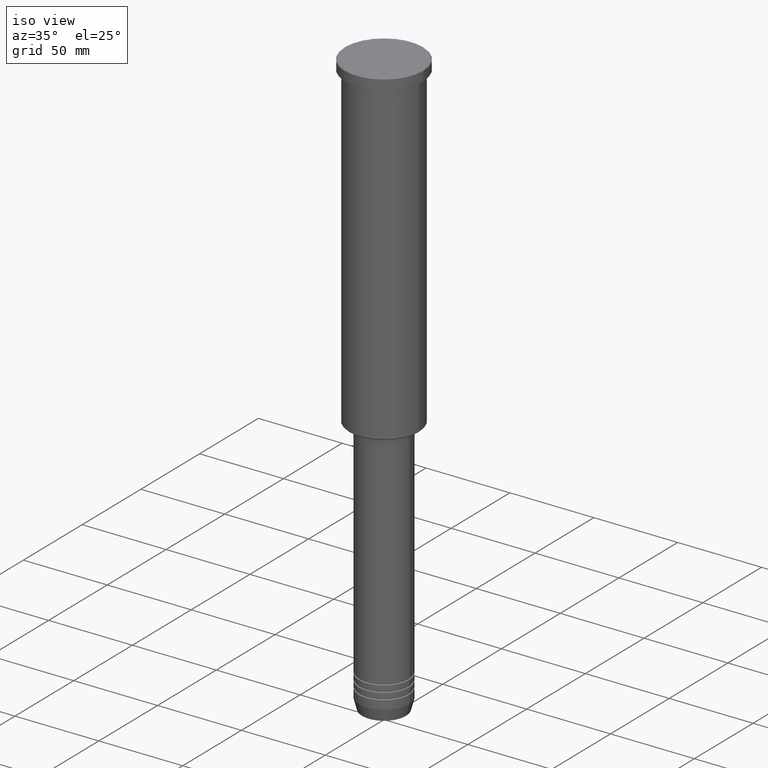
[diagram: clean part render]
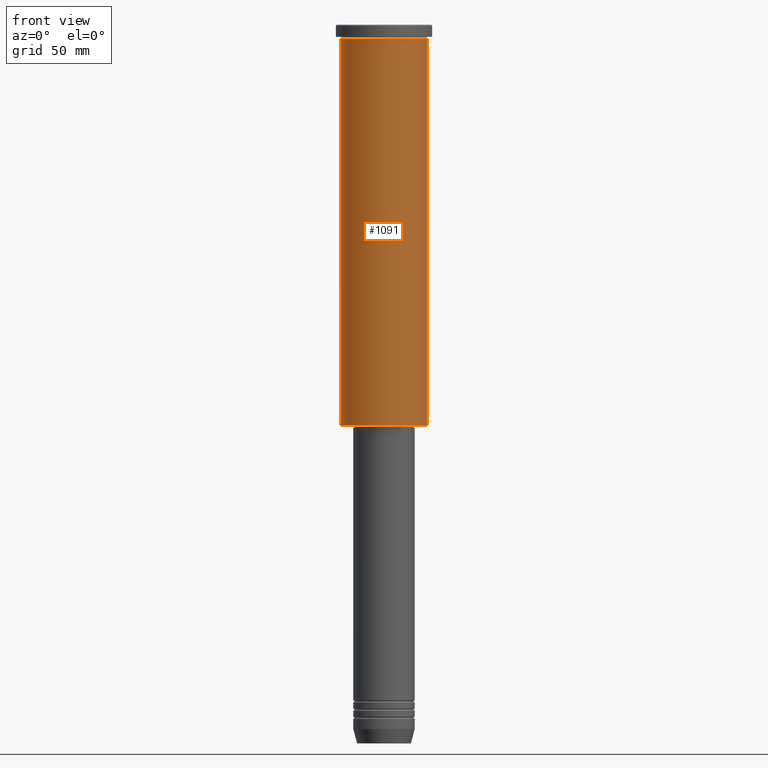
[diagram: tour spotlight — one face highlighted and labeled with its STEP entity id]
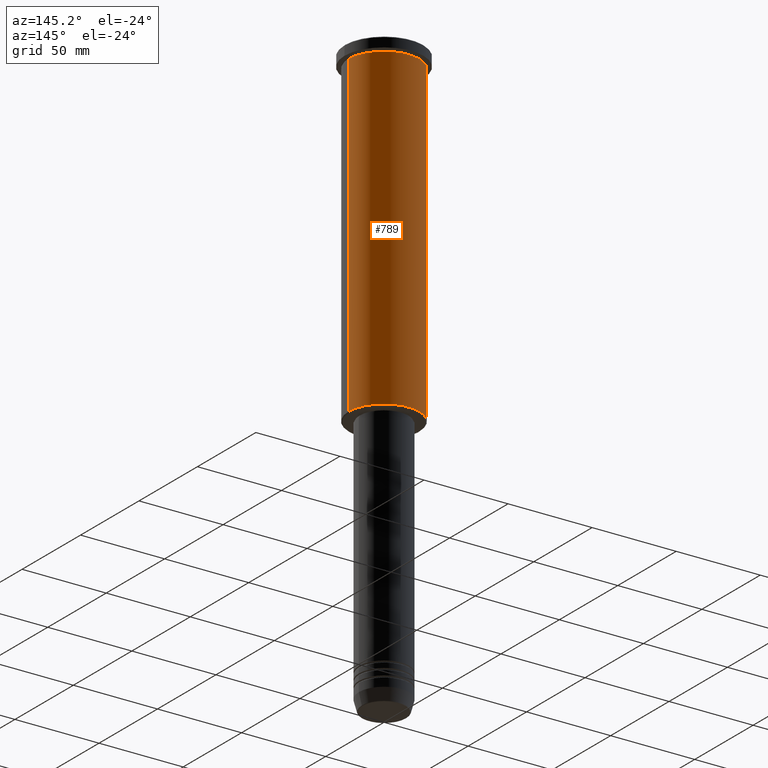
[diagram: tour spotlight — one face highlighted and labeled with its STEP entity id]
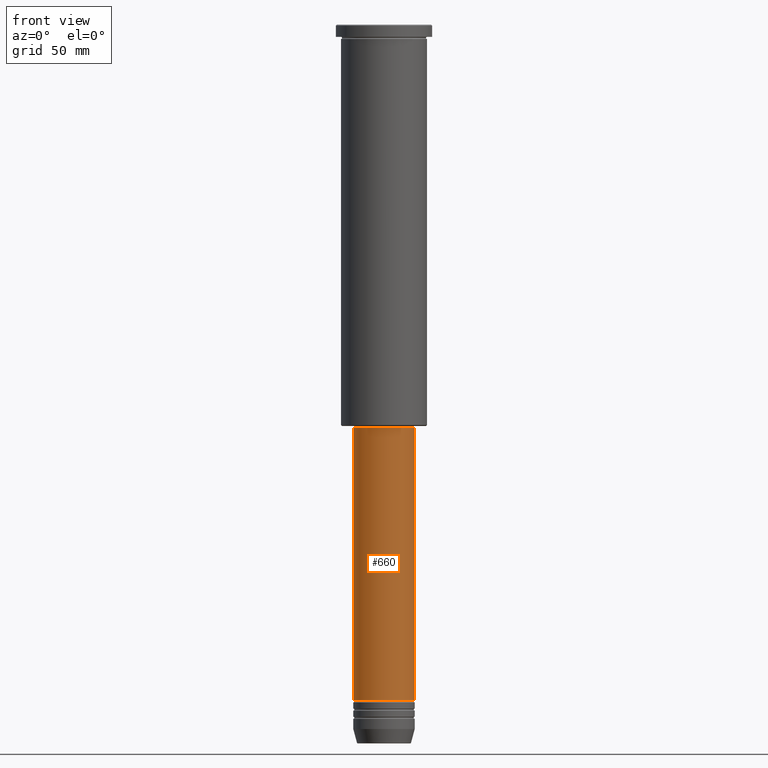
[diagram: tour spotlight — one face highlighted and labeled with its STEP entity id]
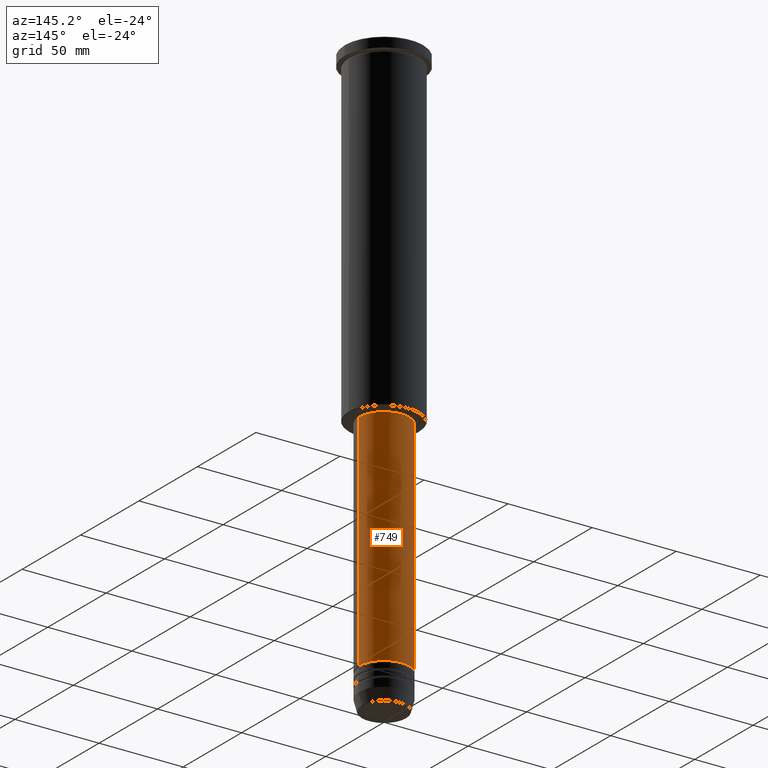
[diagram: tour spotlight — one face highlighted and labeled with its STEP entity id]
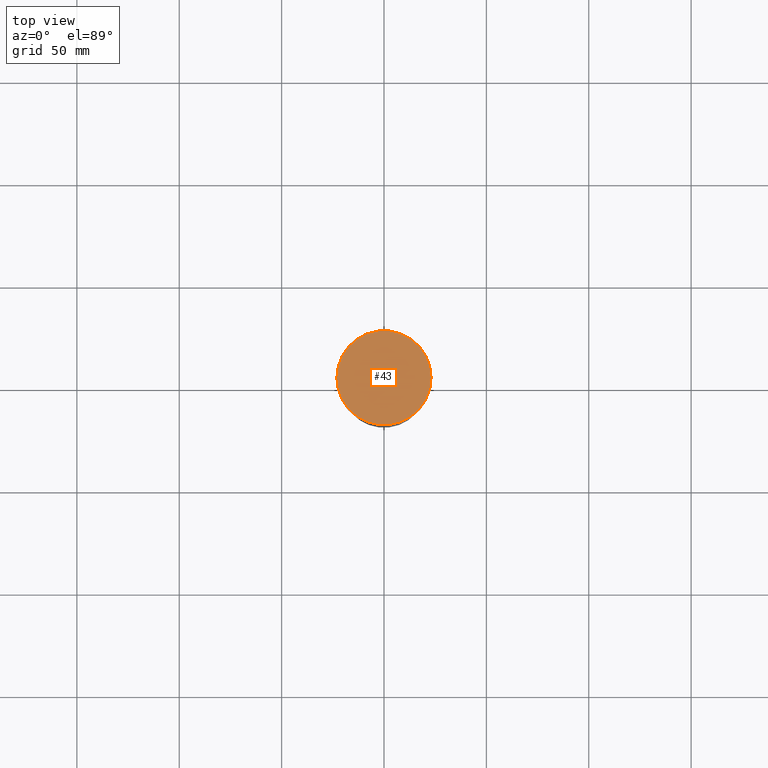
[diagram: tour spotlight — one face highlighted and labeled with its STEP entity id]
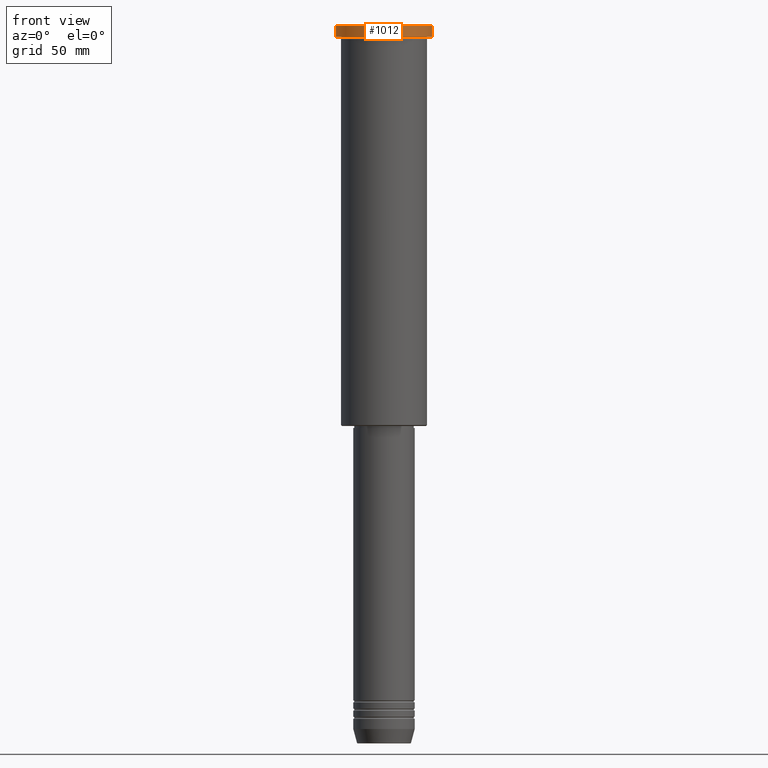
[diagram: tour spotlight — one face highlighted and labeled with its STEP entity id]
A machine part: a face-by-face anatomy tour. The part has 43 B-rep faces; the first image is the clean iso view, then the 6 largest visible faces are spotlighted one at a time (largest first), each with its STEP entity span.

Face 1 — front view, entity #1091. In plain terms, the highlighted cylindrical surface (partial cylindrical patch) has radius 21 mm, axis along (-0, -0, 1).
Definition (entity closure, byte-faithful):
#49 = CARTESIAN_POINT ( 'NONE',  ( 0.000000000000000000, 0.000000000000000000, 0.000000000000000000 ) ) ;
#56 = DIRECTION ( 'NONE',  ( 1.000000000000000000, 0.000000000000000000, 0.000000000000000000 ) ) ;
#57 = VERTEX_POINT ( 'NONE', #90 ) ;
#70 = EDGE_CURVE ( 'NONE', #141, #57, #613, .T. ) ;
#90 = CARTESIAN_POINT ( 'NONE',  ( 21.00000000000000000, 0.000000000000000000, -6.999999999999993783 ) ) ;
#141 = VERTEX_POINT ( 'NONE', #750 ) ;
#171 = EDGE_CURVE ( 'NONE', #560, #141, #286, .T. ) ;
#179 = EDGE_LOOP ( 'NONE', ( #579, #357, #510, #377 ) ) ;
#286 = LINE ( 'NONE', #928, #611 ) ;
#296 = VECTOR ( 'NONE', #841, 1000.000000000000000 ) ;
#310 = VERTEX_POINT ( 'NONE', #715 ) ;
#348 = CIRCLE ( 'NONE', #529, 21.00000000000000000 ) ;
#357 = ORIENTED_EDGE ( 'NONE', *, *, #427, .T. ) ;
#377 = ORIENTED_EDGE ( 'NONE', *, *, #70, .F. ) ;
#381 = CARTESIAN_POINT ( 'NONE',  ( -21.00000000000000000, 2.571758278209441661E-15, -195.4999999999999432 ) ) ;
#415 = AXIS2_PLACEMENT_3D ( 'NONE', #49, #773, #56 ) ;
#427 = EDGE_CURVE ( 'NONE', #560, #310, #348, .T. ) ;
#474 = EDGE_CURVE ( 'NONE', #310, #57, #931, .T. ) ;
#476 = DIRECTION ( 'NONE',  ( -0.000000000000000000, -0.000000000000000000, 1.000000000000000000 ) ) ;
#510 = ORIENTED_EDGE ( 'NONE', *, *, #474, .T. ) ;
#527 = CARTESIAN_POINT ( 'NONE',  ( 0.000000000000000000, 0.000000000000000000, -6.999999999999993783 ) ) ;
#529 = AXIS2_PLACEMENT_3D ( 'NONE', #757, #836, #744 ) ;
#542 = DIRECTION ( 'NONE',  ( -0.000000000000000000, -0.000000000000000000, 1.000000000000000000 ) ) ;
#560 = VERTEX_POINT ( 'NONE', #381 ) ;
#579 = ORIENTED_EDGE ( 'NONE', *, *, #171, .F. ) ;
#594 = FACE_OUTER_BOUND ( 'NONE', #179, .T. ) ;
#611 = VECTOR ( 'NONE', #476, 1000.000000000000000 ) ;
#613 = CIRCLE ( 'NONE', #966, 21.00000000000000000 ) ;
#715 = CARTESIAN_POINT ( 'NONE',  ( 21.00000000000000000, 0.000000000000000000, -195.4999999999999432 ) ) ;
#744 = DIRECTION ( 'NONE',  ( -1.000000000000000000, 0.000000000000000000, 0.000000000000000000 ) ) ;
#750 = CARTESIAN_POINT ( 'NONE',  ( -21.00000000000000000, 2.571758278209441661E-15, -6.999999999999993783 ) ) ;
#757 = CARTESIAN_POINT ( 'NONE',  ( 0.000000000000000000, 0.000000000000000000, -195.4999999999999432 ) ) ;
#773 = DIRECTION ( 'NONE',  ( -0.000000000000000000, -0.000000000000000000, 1.000000000000000000 ) ) ;
#836 = DIRECTION ( 'NONE',  ( -0.000000000000000000, -0.000000000000000000, 1.000000000000000000 ) ) ;
#841 = DIRECTION ( 'NONE',  ( -0.000000000000000000, -0.000000000000000000, 1.000000000000000000 ) ) ;
#928 = CARTESIAN_POINT ( 'NONE',  ( -21.00000000000000000, 2.571758278209441661E-15, 0.000000000000000000 ) ) ;
#931 = LINE ( 'NONE', #936, #296 ) ;
#936 = CARTESIAN_POINT ( 'NONE',  ( 21.00000000000000000, 0.000000000000000000, 0.000000000000000000 ) ) ;
#959 = CYLINDRICAL_SURFACE ( 'NONE', #415, 21.00000000000000000 ) ;
#966 = AXIS2_PLACEMENT_3D ( 'NONE', #527, #542, #1062 ) ;
#1062 = DIRECTION ( 'NONE',  ( 1.000000000000000000, 0.000000000000000000, 0.000000000000000000 ) ) ;
#1091 = ADVANCED_FACE ( 'NONE', ( #594 ), #959, .T. ) ;

Face 2 — auxiliary view, entity #789. In plain terms, the highlighted cylindrical surface (partial cylindrical patch) has radius 21 mm, axis along (-0, -0, 1).
Definition (entity closure, byte-faithful):
#9 = ORIENTED_EDGE ( 'NONE', *, *, #474, .F. ) ;
#57 = VERTEX_POINT ( 'NONE', #90 ) ;
#60 = CARTESIAN_POINT ( 'NONE',  ( 0.000000000000000000, 0.000000000000000000, 0.000000000000000000 ) ) ;
#76 = CARTESIAN_POINT ( 'NONE',  ( 0.000000000000000000, 0.000000000000000000, -6.999999999999993783 ) ) ;
#90 = CARTESIAN_POINT ( 'NONE',  ( 21.00000000000000000, 0.000000000000000000, -6.999999999999993783 ) ) ;
#119 = DIRECTION ( 'NONE',  ( -1.000000000000000000, 0.000000000000000000, 0.000000000000000000 ) ) ;
#141 = VERTEX_POINT ( 'NONE', #750 ) ;
#148 = CIRCLE ( 'NONE', #315, 21.00000000000000000 ) ;
#171 = EDGE_CURVE ( 'NONE', #560, #141, #286, .T. ) ;
#286 = LINE ( 'NONE', #928, #611 ) ;
#296 = VECTOR ( 'NONE', #841, 1000.000000000000000 ) ;
#298 = FACE_OUTER_BOUND ( 'NONE', #543, .T. ) ;
#310 = VERTEX_POINT ( 'NONE', #715 ) ;
#315 = AXIS2_PLACEMENT_3D ( 'NONE', #76, #443, #1165 ) ;
#342 = DIRECTION ( 'NONE',  ( 1.000000000000000000, 0.000000000000000000, 0.000000000000000000 ) ) ;
#368 = CARTESIAN_POINT ( 'NONE',  ( 0.000000000000000000, 0.000000000000000000, -195.4999999999999432 ) ) ;
#381 = CARTESIAN_POINT ( 'NONE',  ( -21.00000000000000000, 2.571758278209441661E-15, -195.4999999999999432 ) ) ;
#421 = DIRECTION ( 'NONE',  ( -0.000000000000000000, -0.000000000000000000, 1.000000000000000000 ) ) ;
#443 = DIRECTION ( 'NONE',  ( -0.000000000000000000, -0.000000000000000000, 1.000000000000000000 ) ) ;
#474 = EDGE_CURVE ( 'NONE', #310, #57, #931, .T. ) ;
#476 = DIRECTION ( 'NONE',  ( -0.000000000000000000, -0.000000000000000000, 1.000000000000000000 ) ) ;
#495 = AXIS2_PLACEMENT_3D ( 'NONE', #368, #1088, #119 ) ;
#507 = ORIENTED_EDGE ( 'NONE', *, *, #828, .F. ) ;
#526 = CYLINDRICAL_SURFACE ( 'NONE', #587, 21.00000000000000000 ) ;
#543 = EDGE_LOOP ( 'NONE', ( #850, #742, #507, #9 ) ) ;
#560 = VERTEX_POINT ( 'NONE', #381 ) ;
#587 = AXIS2_PLACEMENT_3D ( 'NONE', #60, #421, #342 ) ;
#611 = VECTOR ( 'NONE', #476, 1000.000000000000000 ) ;
#662 = EDGE_CURVE ( 'NONE', #310, #560, #1037, .T. ) ;
#715 = CARTESIAN_POINT ( 'NONE',  ( 21.00000000000000000, 0.000000000000000000, -195.4999999999999432 ) ) ;
#742 = ORIENTED_EDGE ( 'NONE', *, *, #171, .T. ) ;
#750 = CARTESIAN_POINT ( 'NONE',  ( -21.00000000000000000, 2.571758278209441661E-15, -6.999999999999993783 ) ) ;
#789 = ADVANCED_FACE ( 'NONE', ( #298 ), #526, .T. ) ;
#828 = EDGE_CURVE ( 'NONE', #57, #141, #148, .T. ) ;
#841 = DIRECTION ( 'NONE',  ( -0.000000000000000000, -0.000000000000000000, 1.000000000000000000 ) ) ;
#850 = ORIENTED_EDGE ( 'NONE', *, *, #662, .T. ) ;
#928 = CARTESIAN_POINT ( 'NONE',  ( -21.00000000000000000, 2.571758278209441661E-15, 0.000000000000000000 ) ) ;
#931 = LINE ( 'NONE', #936, #296 ) ;
#936 = CARTESIAN_POINT ( 'NONE',  ( 21.00000000000000000, 0.000000000000000000, 0.000000000000000000 ) ) ;
#1037 = CIRCLE ( 'NONE', #495, 21.00000000000000000 ) ;
#1088 = DIRECTION ( 'NONE',  ( -0.000000000000000000, -0.000000000000000000, 1.000000000000000000 ) ) ;
#1165 = DIRECTION ( 'NONE',  ( 1.000000000000000000, 0.000000000000000000, 0.000000000000000000 ) ) ;

Face 3 — front view, entity #660. In plain terms, the highlighted cylindrical surface (edge-blend (fillet) strip) has radius 15 mm, axis along (-0, -0, 1).
Definition (entity closure, byte-faithful):
#4 = CARTESIAN_POINT ( 'NONE',  ( 0.000000000000000000, 0.000000000000000000, -329.9999999999999432 ) ) ;
#25 = CARTESIAN_POINT ( 'NONE',  ( 0.000000000000000000, 0.000000000000000000, 0.000000000000000000 ) ) ;
#154 = VECTOR ( 'NONE', #719, 1000.000000000000000 ) ;
#186 = DIRECTION ( 'NONE',  ( -0.000000000000000000, -0.000000000000000000, 1.000000000000000000 ) ) ;
#263 = EDGE_CURVE ( 'NONE', #410, #364, #896, .T. ) ;
#288 = CARTESIAN_POINT ( 'NONE',  ( 0.000000000000000000, 0.000000000000000000, -196.9999999999999432 ) ) ;
#321 = EDGE_CURVE ( 'NONE', #410, #765, #572, .T. ) ;
#326 = EDGE_LOOP ( 'NONE', ( #760, #599, #960, #874 ) ) ;
#341 = CARTESIAN_POINT ( 'NONE',  ( -15.00000000000000000, 1.836970198721029589E-15, 0.000000000000000000 ) ) ;
#364 = VERTEX_POINT ( 'NONE', #535 ) ;
#406 = CARTESIAN_POINT ( 'NONE',  ( 15.00000000000000000, 0.000000000000000000, -196.9999999999999432 ) ) ;
#410 = VERTEX_POINT ( 'NONE', #463 ) ;
#434 = LINE ( 'NONE', #725, #795 ) ;
#463 = CARTESIAN_POINT ( 'NONE',  ( -15.00000000000000000, 1.836970198721029589E-15, -329.9999999999999432 ) ) ;
#500 = EDGE_CURVE ( 'NONE', #364, #747, #880, .T. ) ;
#535 = CARTESIAN_POINT ( 'NONE',  ( -15.00000000000000000, 1.836970198721029589E-15, -196.9999999999999432 ) ) ;
#557 = DIRECTION ( 'NONE',  ( 1.000000000000000000, 0.000000000000000000, 0.000000000000000000 ) ) ;
#564 = CYLINDRICAL_SURFACE ( 'NONE', #996, 15.00000000000000000 ) ;
#572 = CIRCLE ( 'NONE', #630, 15.00000000000000000 ) ;
#599 = ORIENTED_EDGE ( 'NONE', *, *, #321, .T. ) ;
#600 = CARTESIAN_POINT ( 'NONE',  ( 15.00000000000000000, 0.000000000000000000, -329.9999999999999432 ) ) ;
#630 = AXIS2_PLACEMENT_3D ( 'NONE', #4, #1064, #1070 ) ;
#652 = DIRECTION ( 'NONE',  ( -0.000000000000000000, -0.000000000000000000, 1.000000000000000000 ) ) ;
#660 = ADVANCED_FACE ( 'NONE', ( #1103 ), #564, .T. ) ;
#719 = DIRECTION ( 'NONE',  ( -0.000000000000000000, -0.000000000000000000, 1.000000000000000000 ) ) ;
#720 = AXIS2_PLACEMENT_3D ( 'NONE', #288, #652, #557 ) ;
#725 = CARTESIAN_POINT ( 'NONE',  ( 15.00000000000000000, 0.000000000000000000, 0.000000000000000000 ) ) ;
#747 = VERTEX_POINT ( 'NONE', #406 ) ;
#760 = ORIENTED_EDGE ( 'NONE', *, *, #263, .F. ) ;
#765 = VERTEX_POINT ( 'NONE', #600 ) ;
#795 = VECTOR ( 'NONE', #1083, 1000.000000000000000 ) ;
#874 = ORIENTED_EDGE ( 'NONE', *, *, #500, .F. ) ;
#880 = CIRCLE ( 'NONE', #720, 15.00000000000000000 ) ;
#896 = LINE ( 'NONE', #341, #154 ) ;
#929 = DIRECTION ( 'NONE',  ( 1.000000000000000000, 0.000000000000000000, 0.000000000000000000 ) ) ;
#960 = ORIENTED_EDGE ( 'NONE', *, *, #1123, .T. ) ;
#996 = AXIS2_PLACEMENT_3D ( 'NONE', #25, #186, #929 ) ;
#1064 = DIRECTION ( 'NONE',  ( -0.000000000000000000, -0.000000000000000000, 1.000000000000000000 ) ) ;
#1070 = DIRECTION ( 'NONE',  ( 1.000000000000000000, 0.000000000000000000, 0.000000000000000000 ) ) ;
#1083 = DIRECTION ( 'NONE',  ( -0.000000000000000000, -0.000000000000000000, 1.000000000000000000 ) ) ;
#1103 = FACE_OUTER_BOUND ( 'NONE', #326, .T. ) ;
#1123 = EDGE_CURVE ( 'NONE', #765, #747, #434, .T. ) ;

Face 4 — auxiliary view, entity #749. In plain terms, the highlighted cylindrical surface (edge-blend (fillet) strip) has radius 15 mm, axis along (-0, -0, 1).
Definition (entity closure, byte-faithful):
#24 = CARTESIAN_POINT ( 'NONE',  ( 0.000000000000000000, 0.000000000000000000, -196.9999999999999432 ) ) ;
#117 = EDGE_CURVE ( 'NONE', #747, #364, #281, .T. ) ;
#154 = VECTOR ( 'NONE', #719, 1000.000000000000000 ) ;
#200 = AXIS2_PLACEMENT_3D ( 'NONE', #648, #667, #1095 ) ;
#224 = ORIENTED_EDGE ( 'NONE', *, *, #117, .F. ) ;
#263 = EDGE_CURVE ( 'NONE', #410, #364, #896, .T. ) ;
#281 = CIRCLE ( 'NONE', #477, 15.00000000000000000 ) ;
#312 = ORIENTED_EDGE ( 'NONE', *, *, #635, .T. ) ;
#333 = CIRCLE ( 'NONE', #200, 15.00000000000000000 ) ;
#341 = CARTESIAN_POINT ( 'NONE',  ( -15.00000000000000000, 1.836970198721029589E-15, 0.000000000000000000 ) ) ;
#364 = VERTEX_POINT ( 'NONE', #535 ) ;
#374 = DIRECTION ( 'NONE',  ( 1.000000000000000000, 0.000000000000000000, 0.000000000000000000 ) ) ;
#406 = CARTESIAN_POINT ( 'NONE',  ( 15.00000000000000000, 0.000000000000000000, -196.9999999999999432 ) ) ;
#410 = VERTEX_POINT ( 'NONE', #463 ) ;
#434 = LINE ( 'NONE', #725, #795 ) ;
#463 = CARTESIAN_POINT ( 'NONE',  ( -15.00000000000000000, 1.836970198721029589E-15, -329.9999999999999432 ) ) ;
#477 = AXIS2_PLACEMENT_3D ( 'NONE', #24, #571, #374 ) ;
#497 = FACE_OUTER_BOUND ( 'NONE', #922, .T. ) ;
#535 = CARTESIAN_POINT ( 'NONE',  ( -15.00000000000000000, 1.836970198721029589E-15, -196.9999999999999432 ) ) ;
#571 = DIRECTION ( 'NONE',  ( -0.000000000000000000, -0.000000000000000000, 1.000000000000000000 ) ) ;
#600 = CARTESIAN_POINT ( 'NONE',  ( 15.00000000000000000, 0.000000000000000000, -329.9999999999999432 ) ) ;
#635 = EDGE_CURVE ( 'NONE', #765, #410, #333, .T. ) ;
#642 = ORIENTED_EDGE ( 'NONE', *, *, #263, .T. ) ;
#648 = CARTESIAN_POINT ( 'NONE',  ( 0.000000000000000000, 0.000000000000000000, -329.9999999999999432 ) ) ;
#667 = DIRECTION ( 'NONE',  ( -0.000000000000000000, -0.000000000000000000, 1.000000000000000000 ) ) ;
#688 = CYLINDRICAL_SURFACE ( 'NONE', #1017, 15.00000000000000000 ) ;
#693 = DIRECTION ( 'NONE',  ( -0.000000000000000000, -0.000000000000000000, 1.000000000000000000 ) ) ;
#719 = DIRECTION ( 'NONE',  ( -0.000000000000000000, -0.000000000000000000, 1.000000000000000000 ) ) ;
#725 = CARTESIAN_POINT ( 'NONE',  ( 15.00000000000000000, 0.000000000000000000, 0.000000000000000000 ) ) ;
#747 = VERTEX_POINT ( 'NONE', #406 ) ;
#749 = ADVANCED_FACE ( 'NONE', ( #497 ), #688, .T. ) ;
#765 = VERTEX_POINT ( 'NONE', #600 ) ;
#777 = DIRECTION ( 'NONE',  ( 1.000000000000000000, 0.000000000000000000, 0.000000000000000000 ) ) ;
#795 = VECTOR ( 'NONE', #1083, 1000.000000000000000 ) ;
#858 = CARTESIAN_POINT ( 'NONE',  ( 0.000000000000000000, 0.000000000000000000, 0.000000000000000000 ) ) ;
#896 = LINE ( 'NONE', #341, #154 ) ;
#922 = EDGE_LOOP ( 'NONE', ( #312, #642, #224, #1176 ) ) ;
#1017 = AXIS2_PLACEMENT_3D ( 'NONE', #858, #693, #777 ) ;
#1083 = DIRECTION ( 'NONE',  ( -0.000000000000000000, -0.000000000000000000, 1.000000000000000000 ) ) ;
#1095 = DIRECTION ( 'NONE',  ( 1.000000000000000000, 0.000000000000000000, 0.000000000000000000 ) ) ;
#1123 = EDGE_CURVE ( 'NONE', #765, #747, #434, .T. ) ;
#1176 = ORIENTED_EDGE ( 'NONE', *, *, #1123, .F. ) ;

Face 5 — top view, entity #43. In plain terms, the highlighted planar face has unit normal (0, -0, 1).
Definition (entity closure, byte-faithful):
#43 = ADVANCED_FACE ( 'NONE', ( #159 ), #708, .T. ) ;
#83 = ORIENTED_EDGE ( 'NONE', *, *, #1174, .T. ) ;
#151 = CARTESIAN_POINT ( 'NONE',  ( -22.99999999999996803, 0.000000000000000000, 0.000000000000000000 ) ) ;
#159 = FACE_OUTER_BOUND ( 'NONE', #1153, .T. ) ;
#177 = DIRECTION ( 'NONE',  ( 1.000000000000000000, 0.000000000000000000, 0.000000000000000000 ) ) ;
#239 = AXIS2_PLACEMENT_3D ( 'NONE', #619, #898, #177 ) ;
#246 = CARTESIAN_POINT ( 'NONE',  ( 22.99999999999996803, 2.847303808017594561E-15, 0.000000000000000000 ) ) ;
#379 = EDGE_CURVE ( 'NONE', #933, #1104, #435, .T. ) ;
#435 = CIRCLE ( 'NONE', #516, 22.99999999999996803 ) ;
#516 = AXIS2_PLACEMENT_3D ( 'NONE', #644, #993, #889 ) ;
#532 = AXIS2_PLACEMENT_3D ( 'NONE', #779, #875, #584 ) ;
#577 = ORIENTED_EDGE ( 'NONE', *, *, #379, .T. ) ;
#584 = DIRECTION ( 'NONE',  ( 1.000000000000000000, 0.000000000000000000, 0.000000000000000000 ) ) ;
#619 = CARTESIAN_POINT ( 'NONE',  ( 0.000000000000000000, 0.000000000000000000, 0.000000000000000000 ) ) ;
#644 = CARTESIAN_POINT ( 'NONE',  ( 0.000000000000000000, 0.000000000000000000, 0.000000000000000000 ) ) ;
#708 = PLANE ( 'NONE',  #239 ) ;
#779 = CARTESIAN_POINT ( 'NONE',  ( 0.000000000000000000, 0.000000000000000000, 0.000000000000000000 ) ) ;
#875 = DIRECTION ( 'NONE',  ( -0.000000000000000000, -0.000000000000000000, 1.000000000000000000 ) ) ;
#883 = CIRCLE ( 'NONE', #532, 22.99999999999996803 ) ;
#889 = DIRECTION ( 'NONE',  ( 1.000000000000000000, 0.000000000000000000, 0.000000000000000000 ) ) ;
#898 = DIRECTION ( 'NONE',  ( 0.000000000000000000, -0.000000000000000000, 1.000000000000000000 ) ) ;
#933 = VERTEX_POINT ( 'NONE', #246 ) ;
#993 = DIRECTION ( 'NONE',  ( -0.000000000000000000, -0.000000000000000000, 1.000000000000000000 ) ) ;
#1104 = VERTEX_POINT ( 'NONE', #151 ) ;
#1153 = EDGE_LOOP ( 'NONE', ( #83, #577 ) ) ;
#1174 = EDGE_CURVE ( 'NONE', #1104, #933, #883, .T. ) ;

Face 6 — front view, entity #1012. In plain terms, the highlighted cylindrical surface (partial cylindrical patch) has radius 23.5 mm, axis along (-0, -0, 1).
Definition (entity closure, byte-faithful):
#21 = ORIENTED_EDGE ( 'NONE', *, *, #798, .F. ) ;
#29 = DIRECTION ( 'NONE',  ( 1.000000000000000000, 0.000000000000000000, 0.000000000000000000 ) ) ;
#53 = CIRCLE ( 'NONE', #647, 23.50000000000000000 ) ;
#54 = AXIS2_PLACEMENT_3D ( 'NONE', #576, #493, #29 ) ;
#67 = DIRECTION ( 'NONE',  ( -0.000000000000000000, -0.000000000000000000, 1.000000000000000000 ) ) ;
#80 = EDGE_CURVE ( 'NONE', #407, #778, #461, .T. ) ;
#127 = ORIENTED_EDGE ( 'NONE', *, *, #80, .T. ) ;
#163 = EDGE_CURVE ( 'NONE', #199, #407, #273, .T. ) ;
#169 = ORIENTED_EDGE ( 'NONE', *, *, #163, .T. ) ;
#199 = VERTEX_POINT ( 'NONE', #903 ) ;
#209 = FACE_OUTER_BOUND ( 'NONE', #1110, .T. ) ;
#228 = ORIENTED_EDGE ( 'NONE', *, *, #484, .T. ) ;
#273 = LINE ( 'NONE', #661, #709 ) ;
#294 = CYLINDRICAL_SURFACE ( 'NONE', #54, 23.50000000000000000 ) ;
#302 = CARTESIAN_POINT ( 'NONE',  ( -23.50000000000000000, 2.877919977996280320E-15, -5.999999999999993783 ) ) ;
#327 = LINE ( 'NONE', #1079, #513 ) ;
#407 = VERTEX_POINT ( 'NONE', #1116 ) ;
#461 = CIRCLE ( 'NONE', #1128, 23.50000000000000000 ) ;
#484 = EDGE_CURVE ( 'NONE', #1041, #199, #53, .T. ) ;
#493 = DIRECTION ( 'NONE',  ( -0.000000000000000000, -0.000000000000000000, 1.000000000000000000 ) ) ;
#513 = VECTOR ( 'NONE', #67, 1000.000000000000000 ) ;
#546 = CARTESIAN_POINT ( 'NONE',  ( 0.000000000000000000, 0.000000000000000000, -0.5000000000000004441 ) ) ;
#563 = DIRECTION ( 'NONE',  ( -0.000000000000000000, -0.000000000000000000, 1.000000000000000000 ) ) ;
#576 = CARTESIAN_POINT ( 'NONE',  ( 0.000000000000000000, 0.000000000000000000, 0.000000000000000000 ) ) ;
#647 = AXIS2_PLACEMENT_3D ( 'NONE', #737, #1106, #1098 ) ;
#661 = CARTESIAN_POINT ( 'NONE',  ( 23.50000000000000000, 0.000000000000000000, 0.000000000000000000 ) ) ;
#709 = VECTOR ( 'NONE', #563, 1000.000000000000000 ) ;
#737 = CARTESIAN_POINT ( 'NONE',  ( 0.000000000000000000, 0.000000000000000000, -5.999999999999993783 ) ) ;
#778 = VERTEX_POINT ( 'NONE', #1120 ) ;
#798 = EDGE_CURVE ( 'NONE', #1041, #778, #327, .T. ) ;
#885 = DIRECTION ( 'NONE',  ( 0.000000000000000000, 0.000000000000000000, -1.000000000000000000 ) ) ;
#903 = CARTESIAN_POINT ( 'NONE',  ( 23.50000000000000000, 0.000000000000000000, -5.999999999999993783 ) ) ;
#1012 = ADVANCED_FACE ( 'NONE', ( #209 ), #294, .T. ) ;
#1041 = VERTEX_POINT ( 'NONE', #302 ) ;
#1079 = CARTESIAN_POINT ( 'NONE',  ( -23.50000000000000000, 2.877919977996280320E-15, 0.000000000000000000 ) ) ;
#1098 = DIRECTION ( 'NONE',  ( 1.000000000000000000, 0.000000000000000000, 0.000000000000000000 ) ) ;
#1106 = DIRECTION ( 'NONE',  ( -0.000000000000000000, -0.000000000000000000, 1.000000000000000000 ) ) ;
#1110 = EDGE_LOOP ( 'NONE', ( #21, #228, #169, #127 ) ) ;
#1116 = CARTESIAN_POINT ( 'NONE',  ( 23.50000000000000000, 0.000000000000000000, -0.5000000000000004441 ) ) ;
#1120 = CARTESIAN_POINT ( 'NONE',  ( -23.50000000000000000, 2.877919977996280320E-15, -0.5000000000000004441 ) ) ;
#1128 = AXIS2_PLACEMENT_3D ( 'NONE', #546, #885, #1166 ) ;
#1166 = DIRECTION ( 'NONE',  ( 1.000000000000000000, 0.000000000000000000, 0.000000000000000000 ) ) ;